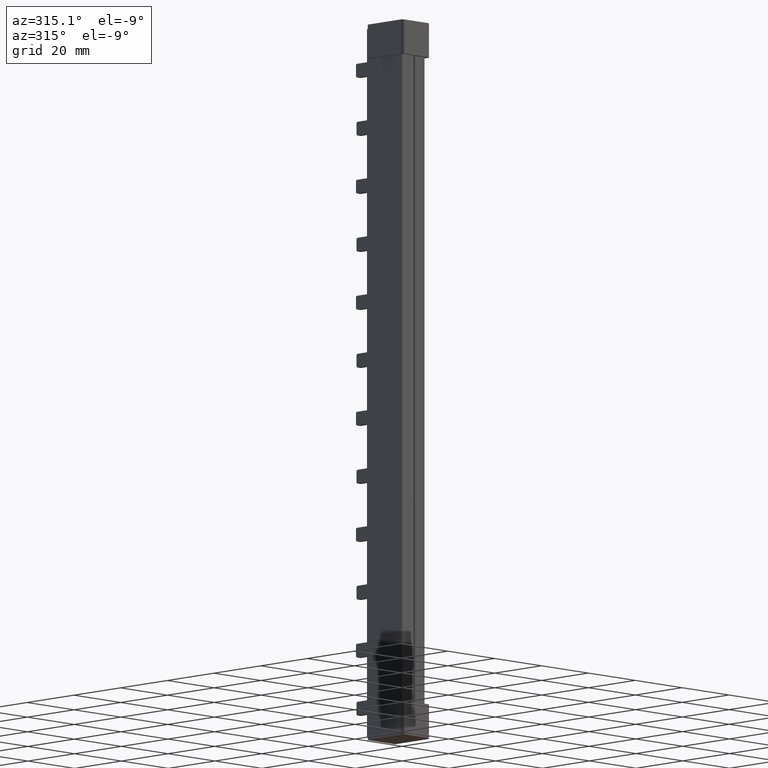
[diagram: clean part render]
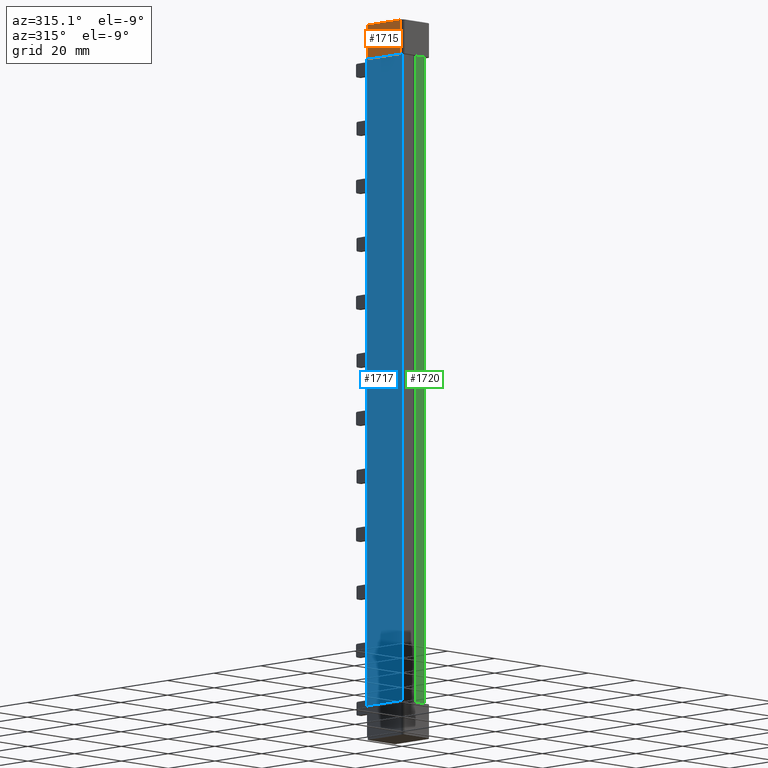
[diagram: same view with three faces highlighted in distinct colors, each labeled with its STEP entity id]
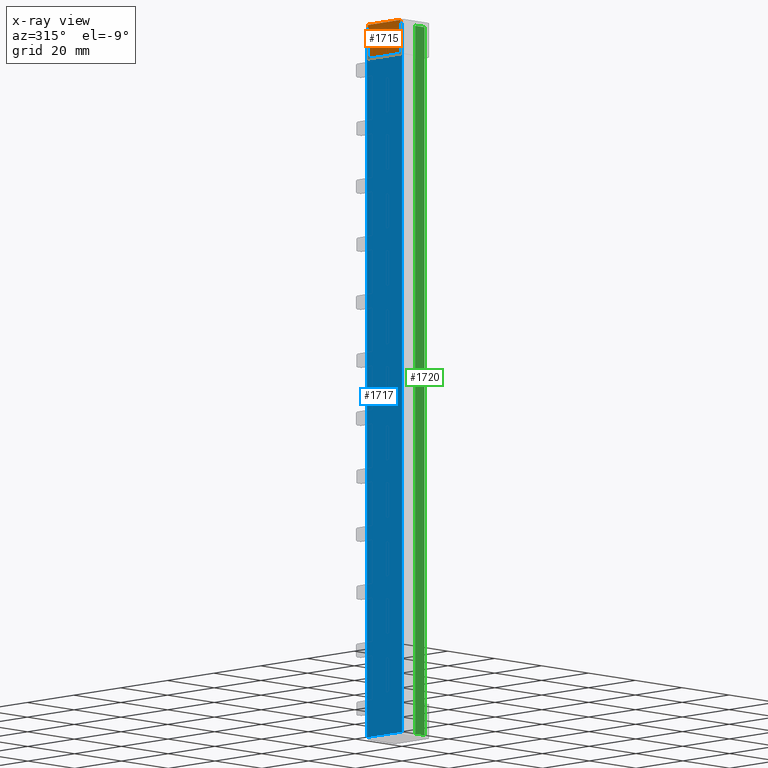
[diagram: x-ray of the same camera — body ghosted, the three highlighted faces saturated]
A machine part, auxiliary view with three faces highlighted in distinct colors.
The next image is the same camera in x-ray (body ghosted, the three faces saturated) — at least one of them is partly hidden behind the body in this view.
Their STEP definitions:

[orange] entity #1715 — the highlighted planar face has unit normal (1, 0, -0).
#1715 = ADVANCED_FACE ( 'NONE', ( #15048 ), #15041, .F. ) ;
#2125 = EDGE_CURVE ( 'NONE', #17586, #17551, #2546, .T. ) ;
#2186 = EDGE_CURVE ( 'NONE', #17507, #17551, #2811, .T. ) ;
#2204 = EDGE_CURVE ( 'NONE', #17507, #17488, #2846, .T. ) ;
#2208 = EDGE_CURVE ( 'NONE', #17488, #17586, #2852, .T. ) ;
#2546 = LINE ( 'NONE', #2561, #19183 ) ;
#2561 = CARTESIAN_POINT ( 'NONE',  ( -1.099999999729346100, -0.3999999999998344900, 208.5000000000007400 ) ) ;
#2576 = DIRECTION ( 'NONE',  ( 0.0000000000000000000, 1.000000000000000000, 0.0000000000000000000 ) ) ;
#2793 = CARTESIAN_POINT ( 'NONE',  ( -1.099999999721386300, 13.60000000000009400, 208.4999999999926400 ) ) ;
#2811 = LINE ( 'NONE', #2793, #4614 ) ;
#2813 = DIRECTION ( 'NONE',  ( 0.0000000000000000000, -0.0000000000000000000, -1.000000000000000000 ) ) ;
#2823 = DIRECTION ( 'NONE',  ( -0.0000000000000000000, -1.000000000000000000, -0.0000000000000000000 ) ) ;
#2846 = LINE ( 'NONE', #2850, #3467 ) ;
#2850 = CARTESIAN_POINT ( 'NONE',  ( -1.099999999721382700, -0.3999999999998344900, 218.8000000000006900 ) ) ;
#2852 = LINE ( 'NONE', #2877, #3472 ) ;
#2877 = CARTESIAN_POINT ( 'NONE',  ( -1.099999999728515300, -0.3999999999998344900, 208.5000000000008200 ) ) ;
#2879 = DIRECTION ( 'NONE',  ( -6.924738560343257600E-013, 0.0000000000000000000, -1.000000000000000000 ) ) ;
#3467 = VECTOR ( 'NONE', #2823, 1000.000000000000000 ) ;
#3472 = VECTOR ( 'NONE', #2879, 1000.000000000000000 ) ;
#4614 = VECTOR ( 'NONE', #2813, 1000.000000000000000 ) ;
#12258 = EDGE_LOOP ( 'NONE', ( #17901, #17875, #17841, #17822 ) ) ;
#15031 = DIRECTION ( 'NONE',  ( -6.924738560343257600E-013, 0.0000000000000000000, -1.000000000000000000 ) ) ;
#15041 = PLANE ( 'NONE',  #19568 ) ;
#15045 = DIRECTION ( 'NONE',  ( 1.000000000000000000, 0.0000000000000000000, -6.924738560343257600E-013 ) ) ;
#15048 = FACE_OUTER_BOUND ( 'NONE', #12258, .T. ) ;
#15059 = CARTESIAN_POINT ( 'NONE',  ( -1.099999999728515300, -0.3999999999998344900, 208.5000000000008200 ) ) ;
#17488 = VERTEX_POINT ( 'NONE', #20471 ) ;
#17507 = VERTEX_POINT ( 'NONE', #20440 ) ;
#17551 = VERTEX_POINT ( 'NONE', #20442 ) ;
#17586 = VERTEX_POINT ( 'NONE', #20547 ) ;
#17822 = ORIENTED_EDGE ( 'NONE', *, *, #2204, .F. ) ;
#17841 = ORIENTED_EDGE ( 'NONE', *, *, #2208, .F. ) ;
#17875 = ORIENTED_EDGE ( 'NONE', *, *, #2125, .F. ) ;
#17901 = ORIENTED_EDGE ( 'NONE', *, *, #2186, .T. ) ;
#19183 = VECTOR ( 'NONE', #2576, 1000.000000000000000 ) ;
#19568 = AXIS2_PLACEMENT_3D ( 'NONE', #15059, #15045, #15031 ) ;
#20440 = CARTESIAN_POINT ( 'NONE',  ( -1.099999999721384500, 13.60000000000009400, 218.8000000000006700 ) ) ;
#20442 = CARTESIAN_POINT ( 'NONE',  ( -1.099999999721386300, 13.60000000000009400, 208.5000000000007400 ) ) ;
#20471 = CARTESIAN_POINT ( 'NONE',  ( -1.099999999721385800, -0.3999999999998344900, 218.8000000000006900 ) ) ;
#20547 = CARTESIAN_POINT ( 'NONE',  ( -1.099999999729346100, -0.3999999999998344900, 208.5000000000007400 ) ) ;

[blue] entity #1717 — the highlighted planar face has unit normal (1, -0, 0).
#1717 = ADVANCED_FACE ( 'NONE', ( #15013 ), #15036, .F. ) ;
#2084 = EDGE_CURVE ( 'NONE', #17575, #17493, #10587, .T. ) ;
#2092 = EDGE_CURVE ( 'NONE', #17491, #17527, #2466, .T. ) ;
#2093 = EDGE_CURVE ( 'NONE', #17545, #17546, #2460, .T. ) ;
#2094 = EDGE_CURVE ( 'NONE', #17493, #17501, #2472, .T. ) ;
#2102 = EDGE_CURVE ( 'NONE', #17526, #17546, #2464, .T. ) ;
#2109 = EDGE_CURVE ( 'NONE', #17526, #17575, #2514, .T. ) ;
#2113 = EDGE_CURVE ( 'NONE', #17491, #17501, #9240, .T. ) ;
#2146 = EDGE_CURVE ( 'NONE', #17545, #17527, #9277, .T. ) ;
#2448 = CARTESIAN_POINT ( 'NONE',  ( 0.0000000000000000000, 14.99999999999998600, 217.7999999999999800 ) ) ;
#2453 = DIRECTION ( 'NONE',  ( 0.0000000000000000000, 1.000000000000000000, 0.0000000000000000000 ) ) ;
#2457 = DIRECTION ( 'NONE',  ( 0.0000000000000000000, 0.0000000000000000000, -1.000000000000000000 ) ) ;
#2459 = CARTESIAN_POINT ( 'NONE',  ( 0.0000000000000000000, -1.011343786494478500E-012, 219.0000000000000000 ) ) ;
#2460 = LINE ( 'NONE', #2487, #19151 ) ;
#2464 = LINE ( 'NONE', #2498, #19168 ) ;
#2466 = LINE ( 'NONE', #2459, #19152 ) ;
#2468 = DIRECTION ( 'NONE',  ( -0.0000000000000000000, -1.000000000000000000, -0.0000000000000000000 ) ) ;
#2472 = LINE ( 'NONE', #2448, #19143 ) ;
#2487 = CARTESIAN_POINT ( 'NONE',  ( 0.0000000000000000000, 14.99999999999998600, 1.200000000000000000 ) ) ;
#2498 = CARTESIAN_POINT ( 'NONE',  ( 0.0000000000000000000, 14.99999999999998600, 1.200000000000000000 ) ) ;
#2500 = CARTESIAN_POINT ( 'NONE',  ( 0.0000000000000000000, 14.99999999999998600, 219.0000000000000000 ) ) ;
#2501 = DIRECTION ( 'NONE',  ( -0.0000000000000000000, -0.0000000000000000000, 1.000000000000000000 ) ) ;
#2506 = CARTESIAN_POINT ( 'NONE',  ( 0.0000000000000000000, 0.004233506526101973300, 217.7999684908489500 ) ) ;
#2507 = CARTESIAN_POINT ( 'NONE',  ( 0.0000000000000000000, -3.301970112851926600E-012, 217.7999030755640600 ) ) ;
#2512 = CARTESIAN_POINT ( 'NONE',  ( 0.0000000000000000000, 0.008467653972832917000, 217.7999999999999500 ) ) ;
#2514 = LINE ( 'NONE', #2500, #19166 ) ;
#2517 = CARTESIAN_POINT ( 'NONE',  ( 0.0000000000000000000, 0.01270166587197401300, 217.8000000000000400 ) ) ;
#2536 = DIRECTION ( 'NONE',  ( 0.0000000000000000000, -1.000000000000000000, -0.0000000000000000000 ) ) ;
#2587 = CARTESIAN_POINT ( 'NONE',  ( -8.723480390052733600E-009, -5.056718932472392700E-013, 1.200096925459736900 ) ) ;
#2595 = CARTESIAN_POINT ( 'NONE',  ( 0.0000000000000000000, 0.004233506433080619700, 1.200031509151779000 ) ) ;
#2614 = CARTESIAN_POINT ( 'NONE',  ( 0.0000000000000000000, 0.01270166588196185500, 1.199999999999992600 ) ) ;
#2615 = CARTESIAN_POINT ( 'NONE',  ( 0.0000000000000000000, 0.008467653936664161500, 1.199999999999988600 ) ) ;
#9240 = B_SPLINE_CURVE_WITH_KNOTS ( 'NONE', 3,
 ( #2507, #2506, #2512, #2517 ),
 .UNSPECIFIED., .F., .F.,
 ( 4, 4 ),
 ( 2.905287678152550800E-016, 1.270203567782827100E-005 ),
 .UNSPECIFIED. ) ;
#9277 = B_SPLINE_CURVE_WITH_KNOTS ( 'NONE', 3,
 ( #2614, #2615, #2595, #2587 ),
 .UNSPECIFIED., .F., .F.,
 ( 4, 4 ),
 ( 8.923609759955351600E-016, 1.270203569343332600E-005 ),
 .UNSPECIFIED. ) ;
#10385 = CARTESIAN_POINT ( 'NONE',  ( 0.0000000000000000000, 14.99999999999998600, 217.7999999999999800 ) ) ;
#10587 = LINE ( 'NONE', #10385, #19135 ) ;
#12133 = EDGE_LOOP ( 'NONE', ( #17737, #17740, #17692, #17694, #17752, #17728, #17689, #17665 ) ) ;
#15012 = DIRECTION ( 'NONE',  ( 0.0000000000000000000, 0.0000000000000000000, -1.000000000000000000 ) ) ;
#15013 = FACE_OUTER_BOUND ( 'NONE', #12133, .T. ) ;
#15032 = DIRECTION ( 'NONE',  ( 1.000000000000000000, -0.0000000000000000000, 0.0000000000000000000 ) ) ;
#15036 = PLANE ( 'NONE',  #19609 ) ;
#15064 = CARTESIAN_POINT ( 'NONE',  ( 0.0000000000000000000, 14.99999999999998600, 219.0000000000000000 ) ) ;
#17491 = VERTEX_POINT ( 'NONE', #20436 ) ;
#17493 = VERTEX_POINT ( 'NONE', #20431 ) ;
#17501 = VERTEX_POINT ( 'NONE', #20427 ) ;
#17526 = VERTEX_POINT ( 'NONE', #20443 ) ;
#17527 = VERTEX_POINT ( 'NONE', #20480 ) ;
#17545 = VERTEX_POINT ( 'NONE', #20429 ) ;
#17546 = VERTEX_POINT ( 'NONE', #20481 ) ;
#17575 = VERTEX_POINT ( 'NONE', #20546 ) ;
#17665 = ORIENTED_EDGE ( 'NONE', *, *, #2094, .F. ) ;
#17689 = ORIENTED_EDGE ( 'NONE', *, *, #2113, .T. ) ;
#17692 = ORIENTED_EDGE ( 'NONE', *, *, #2102, .T. ) ;
#17694 = ORIENTED_EDGE ( 'NONE', *, *, #2093, .F. ) ;
#17728 = ORIENTED_EDGE ( 'NONE', *, *, #2092, .F. ) ;
#17737 = ORIENTED_EDGE ( 'NONE', *, *, #2084, .F. ) ;
#17740 = ORIENTED_EDGE ( 'NONE', *, *, #2109, .F. ) ;
#17752 = ORIENTED_EDGE ( 'NONE', *, *, #2146, .T. ) ;
#19135 = VECTOR ( 'NONE', #21171, 1000.000000000000000 ) ;
#19143 = VECTOR ( 'NONE', #2468, 1000.000000000000000 ) ;
#19151 = VECTOR ( 'NONE', #2453, 1000.000000000000000 ) ;
#19152 = VECTOR ( 'NONE', #2457, 1000.000000000000000 ) ;
#19166 = VECTOR ( 'NONE', #2501, 1000.000000000000000 ) ;
#19168 = VECTOR ( 'NONE', #2536, 1000.000000000000000 ) ;
#19609 = AXIS2_PLACEMENT_3D ( 'NONE', #15064, #15032, #15012 ) ;
#20427 = CARTESIAN_POINT ( 'NONE',  ( 0.0000000000000000000, 0.01270166587197401300, 217.8000000000000400 ) ) ;
#20429 = CARTESIAN_POINT ( 'NONE',  ( 0.0000000000000000000, 0.01270166588196185500, 1.199999999999992600 ) ) ;
#20431 = CARTESIAN_POINT ( 'NONE',  ( 0.0000000000000000000, 13.60000000000009400, 217.7999999999999800 ) ) ;
#20436 = CARTESIAN_POINT ( 'NONE',  ( 0.0000000000000000000, -3.301970112851926600E-012, 217.7999030755640600 ) ) ;
#20443 = CARTESIAN_POINT ( 'NONE',  ( 0.0000000000000000000, 14.99999999999998600, 1.200000000000000000 ) ) ;
#20480 = CARTESIAN_POINT ( 'NONE',  ( -8.723480390052733600E-009, -5.056718932472392700E-013, 1.200096925459736900 ) ) ;
#20481 = CARTESIAN_POINT ( 'NONE',  ( 0.0000000000000000000, 13.60000000000009400, 1.199999999999999100 ) ) ;
#20546 = CARTESIAN_POINT ( 'NONE',  ( 0.0000000000000000000, 14.99999999999998600, 217.7999999999999800 ) ) ;
#21171 = DIRECTION ( 'NONE',  ( 0.0000000000000000000, -1.000000000000000000, -0.0000000000000000000 ) ) ;

[green] entity #1720 — the highlighted planar face has unit normal (0, 1, 0).
#1720 = ADVANCED_FACE ( 'NONE', ( #15052 ), #15040, .F. ) ;
#2004 = EDGE_CURVE ( 'NONE', #17433, #17431, #7644, .T. ) ;
#2104 = EDGE_CURVE ( 'NONE', #17410, #17429, #2499, .T. ) ;
#2106 = EDGE_CURVE ( 'NONE', #17441, #17429, #2520, .T. ) ;
#2108 = EDGE_CURVE ( 'NONE', #17441, #17412, #2523, .T. ) ;
#2143 = EDGE_CURVE ( 'NONE', #17410, #17433, #9248, .T. ) ;
#2150 = EDGE_CURVE ( 'NONE', #17412, #17431, #9233, .T. ) ;
#2499 = LINE ( 'NONE', #2509, #19175 ) ;
#2509 = CARTESIAN_POINT ( 'NONE',  ( 8.900000000277932700, -5.421010862427522200E-017, 217.7999999999938400 ) ) ;
#2510 = DIRECTION ( 'NONE',  ( 1.000000000000000000, -0.0000000000000000000, 6.924738560343257600E-013 ) ) ;
#2513 = DIRECTION ( 'NONE',  ( -1.000000000000000000, -0.0000000000000000000, 6.924738560343257600E-013 ) ) ;
#2520 = LINE ( 'NONE', #2526, #19160 ) ;
#2521 = CARTESIAN_POINT ( 'NONE',  ( 8.900000000277932700, 0.0000000000000000000, 1.200000000006161700 ) ) ;
#2523 = LINE ( 'NONE', #2521, #19176 ) ;
#2526 = CARTESIAN_POINT ( 'NONE',  ( 5.599999999999383200, 0.0000000000000000000, 219.0000000000000000 ) ) ;
#2537 = DIRECTION ( 'NONE',  ( 0.0000000000000000000, -0.0000000000000000000, 1.000000000000000000 ) ) ;
#2602 = CARTESIAN_POINT ( 'NONE',  ( 9.599999999999830900, -3.526380727646465500E-014, 217.7999030758346100 ) ) ;
#2609 = CARTESIAN_POINT ( 'NONE',  ( 9.592820323305369700, -1.084202172485504400E-016, 1.200000000006647100 ) ) ;
#2621 = CARTESIAN_POINT ( 'NONE',  ( 9.592820323276116700, -2.710505431214993700E-017, 217.7999999999933600 ) ) ;
#2622 = CARTESIAN_POINT ( 'NONE',  ( 9.595213766896714300, -2.465190328815661900E-029, 217.7999999999939000 ) ) ;
#2623 = CARTESIAN_POINT ( 'NONE',  ( 9.597607430901256000, 0.0000000000000000000, 217.7999677721826700 ) ) ;
#2625 = CARTESIAN_POINT ( 'NONE',  ( 9.595213766936318200, -1.540743955509788700E-030, 1.200000000006648400 ) ) ;
#2642 = CARTESIAN_POINT ( 'NONE',  ( 9.597607430921071300, 0.0000000000000000000, 1.200032227817874800 ) ) ;
#2667 = CARTESIAN_POINT ( 'NONE',  ( 9.599999999999830900, -2.393351313610649900E-014, 1.200096924165460900 ) ) ;
#7644 = LINE ( 'NONE', #7675, #19810 ) ;
#7660 = DIRECTION ( 'NONE',  ( -0.0000000000000000000, 0.0000000000000000000, -1.000000000000000000 ) ) ;
#7675 = CARTESIAN_POINT ( 'NONE',  ( 9.599999999999830900, 0.0000000000000000000, 219.0000000000000000 ) ) ;
#9233 = B_SPLINE_CURVE_WITH_KNOTS ( 'NONE', 3,
 ( #2609, #2625, #2642, #2667 ),
 .UNSPECIFIED., .F., .F.,
 ( 4, 4 ),
 ( 2.255244766569223100E-017, 7.180330892783532900E-006 ),
 .UNSPECIFIED. ) ;
#9248 = B_SPLINE_CURVE_WITH_KNOTS ( 'NONE', 3,
 ( #2621, #2622, #2623, #2602 ),
 .UNSPECIFIED., .F., .F.,
 ( 4, 4 ),
 ( 3.014543021373565100E-014, 7.180330952157785400E-006 ),
 .UNSPECIFIED. ) ;
#12212 = EDGE_LOOP ( 'NONE', ( #17671, #17596, #17706, #17686, #17591, #17622 ) ) ;
#15040 = PLANE ( 'NONE',  #19597 ) ;
#15052 = FACE_OUTER_BOUND ( 'NONE', #12212, .T. ) ;
#15078 = DIRECTION ( 'NONE',  ( 0.0000000000000000000, 1.000000000000000000, 0.0000000000000000000 ) ) ;
#15104 = CARTESIAN_POINT ( 'NONE',  ( 5.599999999999383200, 0.0000000000000000000, 219.0000000000000000 ) ) ;
#15116 = DIRECTION ( 'NONE',  ( 0.0000000000000000000, -0.0000000000000000000, 1.000000000000000000 ) ) ;
#17410 = VERTEX_POINT ( 'NONE', #20424 ) ;
#17412 = VERTEX_POINT ( 'NONE', #20380 ) ;
#17429 = VERTEX_POINT ( 'NONE', #20371 ) ;
#17431 = VERTEX_POINT ( 'NONE', #20382 ) ;
#17433 = VERTEX_POINT ( 'NONE', #20363 ) ;
#17441 = VERTEX_POINT ( 'NONE', #20400 ) ;
#17591 = ORIENTED_EDGE ( 'NONE', *, *, #2004, .F. ) ;
#17596 = ORIENTED_EDGE ( 'NONE', *, *, #2106, .F. ) ;
#17622 = ORIENTED_EDGE ( 'NONE', *, *, #2143, .F. ) ;
#17671 = ORIENTED_EDGE ( 'NONE', *, *, #2104, .T. ) ;
#17686 = ORIENTED_EDGE ( 'NONE', *, *, #2150, .T. ) ;
#17706 = ORIENTED_EDGE ( 'NONE', *, *, #2108, .T. ) ;
#19160 = VECTOR ( 'NONE', #2537, 1000.000000000000000 ) ;
#19175 = VECTOR ( 'NONE', #2513, 1000.000000000000000 ) ;
#19176 = VECTOR ( 'NONE', #2510, 1000.000000000000000 ) ;
#19597 = AXIS2_PLACEMENT_3D ( 'NONE', #15104, #15078, #15116 ) ;
#19810 = VECTOR ( 'NONE', #7660, 1000.000000000000000 ) ;
#20363 = CARTESIAN_POINT ( 'NONE',  ( 9.599999999999830900, -3.526380727646465500E-014, 217.7999030758346100 ) ) ;
#20371 = CARTESIAN_POINT ( 'NONE',  ( 5.599999999999383200, -1.807003620809174000E-017, 217.7999999999974200 ) ) ;
#20380 = CARTESIAN_POINT ( 'NONE',  ( 9.592820323305369700, -1.084202172485504400E-016, 1.200000000006647100 ) ) ;
#20382 = CARTESIAN_POINT ( 'NONE',  ( 9.599999999999830900, -2.393351313610649900E-014, 1.200096924165460900 ) ) ;
#20400 = CARTESIAN_POINT ( 'NONE',  ( 5.599999999999383200, 0.0000000000000000000, 1.200000000003882600 ) ) ;
#20424 = CARTESIAN_POINT ( 'NONE',  ( 9.592820323276116700, -2.710505431214993700E-017, 217.7999999999933600 ) ) ;